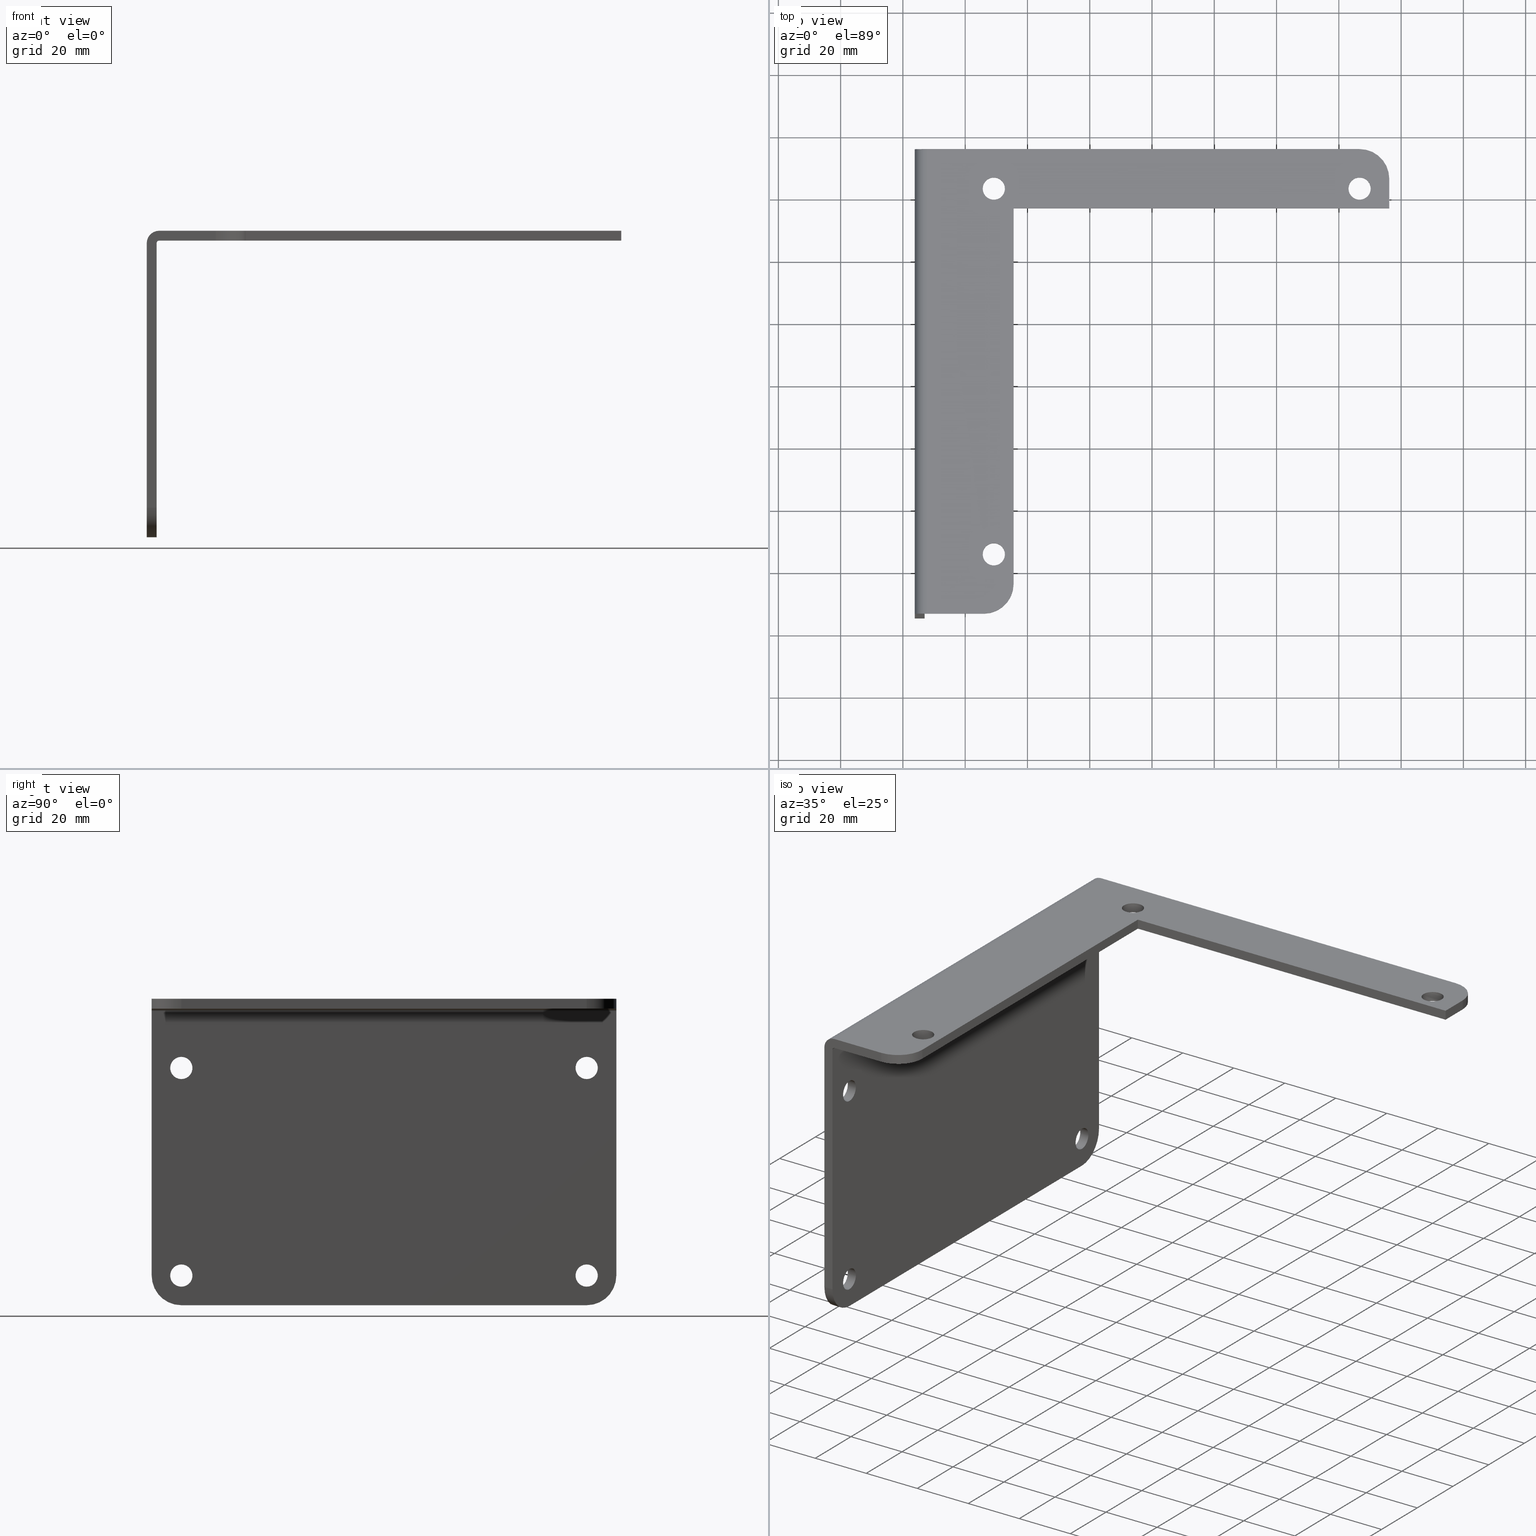
[diagram: canonical four-view strip — front | top / right | iso, engineering-drawing reading convention]
A machine part, canonical four-view strip (front | top / right | iso — engineering-drawing reading convention). The complete STEP part file that produces these views, byte-faithful:
ISO-10303-21;
HEADER;
/* Generated by software containing ST-Developer
 * from STEP Tools, Inc. (www.steptools.com) 
 */

FILE_DESCRIPTION(
/* description */ ('SSJW, WW FITTING, BRACKET HANGER, 4"'),
/* implementation_level */ '2;1');

FILE_NAME(
/* name */ 
'C:\\Wiegmann\\W-Projects\\W-India\\Catalog Projects\\SSJWBH\\SSJWBH D
XF, STP & PDF\\SSJWBH4.stp',
/* time_stamp */ '2017-08-22T20:16:18+06:00',
/* author */ ('rsundaram2'),
/* organization */ (''),
/* preprocessor_version */ 'ST-DEVELOPER v16.1',
/* originating_system */ 'Autodesk Inventor 2016',
/* authorisation */ '');

FILE_SCHEMA (('AUTOMOTIVE_DESIGN { 1 0 10303 214 3 1 1 }'));
ENDSEC;

DATA;
#10=MECHANICAL_DESIGN_GEOMETRIC_PRESENTATION_REPRESENTATION('',(#479,#469,
#470,#471,#472,#476,#468,#467,#478,#475,#474,#473,#480,#477,#461,#465,#464,
#460,#458,#457,#456,#455,#454,#463,#453,#459,#462,#466),#838);
#11=SHAPE_REPRESENTATION_RELATIONSHIP('SRR','None',#850,#12);
#12=ADVANCED_BREP_SHAPE_REPRESENTATION('',(#13),#837);
#13=MANIFOLD_SOLID_BREP('Solid1',#508);
#14=FACE_BOUND('',#79,.T.);
#15=FACE_BOUND('',#80,.T.);
#16=FACE_BOUND('',#81,.T.);
#17=FACE_BOUND('',#85,.T.);
#18=FACE_BOUND('',#86,.T.);
#19=FACE_BOUND('',#87,.T.);
#20=FACE_BOUND('',#88,.T.);
#21=FACE_BOUND('',#92,.T.);
#22=FACE_BOUND('',#94,.T.);
#23=FACE_BOUND('',#96,.T.);
#24=FACE_BOUND('',#98,.T.);
#25=FACE_BOUND('',#104,.T.);
#26=FACE_BOUND('',#105,.T.);
#27=FACE_BOUND('',#106,.T.);
#28=FACE_BOUND('',#107,.T.);
#29=FACE_BOUND('',#111,.T.);
#30=FACE_BOUND('',#113,.T.);
#31=FACE_BOUND('',#115,.T.);
#32=FACE_BOUND('',#121,.T.);
#33=FACE_BOUND('',#122,.T.);
#34=FACE_BOUND('',#123,.T.);
#35=PLANE('',#513);
#36=PLANE('',#514);
#37=PLANE('',#522);
#38=PLANE('',#523);
#39=PLANE('',#531);
#40=PLANE('',#543);
#41=PLANE('',#545);
#42=PLANE('',#547);
#43=PLANE('',#548);
#44=PLANE('',#550);
#45=PLANE('',#559);
#46=PLANE('',#560);
#47=PLANE('',#561);
#48=PLANE('',#562);
#49=FACE_OUTER_BOUND('',#76,.T.);
#50=FACE_OUTER_BOUND('',#77,.T.);
#51=FACE_OUTER_BOUND('',#78,.T.);
#52=FACE_OUTER_BOUND('',#82,.T.);
#53=FACE_OUTER_BOUND('',#83,.T.);
#54=FACE_OUTER_BOUND('',#84,.T.);
#55=FACE_OUTER_BOUND('',#89,.T.);
#56=FACE_OUTER_BOUND('',#90,.T.);
#57=FACE_OUTER_BOUND('',#91,.T.);
#58=FACE_OUTER_BOUND('',#93,.T.);
#59=FACE_OUTER_BOUND('',#95,.T.);
#60=FACE_OUTER_BOUND('',#97,.T.);
#61=FACE_OUTER_BOUND('',#99,.T.);
#62=FACE_OUTER_BOUND('',#100,.T.);
#63=FACE_OUTER_BOUND('',#101,.T.);
#64=FACE_OUTER_BOUND('',#102,.T.);
#65=FACE_OUTER_BOUND('',#103,.T.);
#66=FACE_OUTER_BOUND('',#108,.T.);
#67=FACE_OUTER_BOUND('',#109,.T.);
#68=FACE_OUTER_BOUND('',#110,.T.);
#69=FACE_OUTER_BOUND('',#112,.T.);
#70=FACE_OUTER_BOUND('',#114,.T.);
#71=FACE_OUTER_BOUND('',#116,.T.);
#72=FACE_OUTER_BOUND('',#117,.T.);
#73=FACE_OUTER_BOUND('',#118,.T.);
#74=FACE_OUTER_BOUND('',#119,.T.);
#75=FACE_OUTER_BOUND('',#120,.T.);
#76=EDGE_LOOP('',(#320,#321,#322,#323));
#77=EDGE_LOOP('',(#324,#325,#326,#327));
#78=EDGE_LOOP('',(#328,#329,#330,#331,#332,#333,#334,#335));
#79=EDGE_LOOP('',(#336));
#80=EDGE_LOOP('',(#337));
#81=EDGE_LOOP('',(#338));
#82=EDGE_LOOP('',(#339,#340,#341,#342));
#83=EDGE_LOOP('',(#343,#344,#345,#346));
#84=EDGE_LOOP('',(#347,#348,#349,#350,#351,#352));
#85=EDGE_LOOP('',(#353));
#86=EDGE_LOOP('',(#354));
#87=EDGE_LOOP('',(#355));
#88=EDGE_LOOP('',(#356));
#89=EDGE_LOOP('',(#357,#358,#359,#360));
#90=EDGE_LOOP('',(#361,#362,#363,#364));
#91=EDGE_LOOP('',(#365));
#92=EDGE_LOOP('',(#366));
#93=EDGE_LOOP('',(#367));
#94=EDGE_LOOP('',(#368));
#95=EDGE_LOOP('',(#369));
#96=EDGE_LOOP('',(#370));
#97=EDGE_LOOP('',(#371));
#98=EDGE_LOOP('',(#372));
#99=EDGE_LOOP('',(#373,#374,#375,#376));
#100=EDGE_LOOP('',(#377,#378,#379,#380));
#101=EDGE_LOOP('',(#381,#382,#383,#384));
#102=EDGE_LOOP('',(#385,#386,#387,#388));
#103=EDGE_LOOP('',(#389,#390,#391,#392,#393,#394));
#104=EDGE_LOOP('',(#395));
#105=EDGE_LOOP('',(#396));
#106=EDGE_LOOP('',(#397));
#107=EDGE_LOOP('',(#398));
#108=EDGE_LOOP('',(#399,#400,#401,#402));
#109=EDGE_LOOP('',(#403,#404,#405,#406));
#110=EDGE_LOOP('',(#407));
#111=EDGE_LOOP('',(#408));
#112=EDGE_LOOP('',(#409));
#113=EDGE_LOOP('',(#410));
#114=EDGE_LOOP('',(#411));
#115=EDGE_LOOP('',(#412));
#116=EDGE_LOOP('',(#413,#414,#415,#416));
#117=EDGE_LOOP('',(#417,#418,#419,#420));
#118=EDGE_LOOP('',(#421,#422,#423,#424));
#119=EDGE_LOOP('',(#425,#426,#427,#428));
#120=EDGE_LOOP('',(#429,#430,#431,#432,#433,#434,#435,#436));
#121=EDGE_LOOP('',(#437));
#122=EDGE_LOOP('',(#438));
#123=EDGE_LOOP('',(#439));
#124=LINE('',#711,#158);
#125=LINE('',#714,#159);
#126=LINE('',#717,#160);
#127=LINE('',#719,#161);
#128=LINE('',#720,#162);
#129=LINE('',#723,#163);
#130=LINE('',#725,#164);
#131=LINE('',#727,#165);
#132=LINE('',#731,#166);
#133=LINE('',#732,#167);
#134=LINE('',#744,#168);
#135=LINE('',#747,#169);
#136=LINE('',#750,#170);
#137=LINE('',#752,#171);
#138=LINE('',#753,#172);
#139=LINE('',#756,#173);
#140=LINE('',#760,#174);
#141=LINE('',#761,#175);
#142=LINE('',#774,#176);
#143=LINE('',#775,#177);
#144=LINE('',#778,#178);
#145=LINE('',#779,#179);
#146=LINE('',#793,#180);
#147=LINE('',#800,#181);
#148=LINE('',#803,#182);
#149=LINE('',#806,#183);
#150=LINE('',#809,#184);
#151=LINE('',#810,#185);
#152=LINE('',#822,#186);
#153=LINE('',#826,#187);
#154=LINE('',#827,#188);
#155=LINE('',#830,#189);
#156=LINE('',#831,#190);
#157=LINE('',#833,#191);
#158=VECTOR('',#569,0.125);
#159=VECTOR('',#572,0.125);
#160=VECTOR('',#575,0.718750000000001);
#161=VECTOR('',#576,0.125);
#162=VECTOR('',#577,0.718750000000001);
#163=VECTOR('',#580,4.75);
#164=VECTOR('',#581,4.75);
#165=VECTOR('',#582,0.375000000000001);
#166=VECTOR('',#585,5.46875);
#167=VECTOR('',#586,5.875);
#168=VECTOR('',#597,0.125);
#169=VECTOR('',#600,0.125);
#170=VECTOR('',#603,3.34375);
#171=VECTOR('',#604,0.125);
#172=VECTOR('',#605,3.34375);
#173=VECTOR('',#608,5.125);
#174=VECTOR('',#611,3.34375);
#175=VECTOR('',#612,5.875);
#176=VECTOR('',#625,0.125);
#177=VECTOR('',#626,0.125);
#178=VECTOR('',#629,3.34375);
#179=VECTOR('',#630,0.125);
#180=VECTOR('',#649,5.875);
#181=VECTOR('',#660,0.125);
#182=VECTOR('',#665,5.125);
#183=VECTOR('',#670,5.875);
#184=VECTOR('',#673,0.125);
#185=VECTOR('',#674,5.46875);
#186=VECTOR('',#689,0.125);
#187=VECTOR('',#694,0.125);
#188=VECTOR('',#695,0.375000000000001);
#189=VECTOR('',#698,0.125);
#190=VECTOR('',#699,4.75);
#191=VECTOR('',#702,4.75);
#192=CIRCLE('',#511,0.375);
#193=CIRCLE('',#512,0.375);
#194=CIRCLE('',#515,0.375);
#195=CIRCLE('',#516,0.140625);
#196=CIRCLE('',#517,0.140625);
#197=CIRCLE('',#518,0.140625);
#198=CIRCLE('',#520,0.375);
#199=CIRCLE('',#521,0.375);
#200=CIRCLE('',#524,0.375);
#201=CIRCLE('',#525,0.140625);
#202=CIRCLE('',#526,0.140625);
#203=CIRCLE('',#527,0.140625);
#204=CIRCLE('',#528,0.140625);
#205=CIRCLE('',#530,0.375);
#206=CIRCLE('',#533,0.140625);
#207=CIRCLE('',#535,0.140625);
#208=CIRCLE('',#537,0.140625);
#209=CIRCLE('',#539,0.140625);
#210=CIRCLE('',#541,0.156250000000001);
#211=CIRCLE('',#542,0.15625);
#212=CIRCLE('',#544,0.031250000000001);
#213=CIRCLE('',#546,0.0312499999999995);
#214=CIRCLE('',#552,0.140625);
#215=CIRCLE('',#554,0.140625);
#216=CIRCLE('',#556,0.140625);
#217=CIRCLE('',#558,0.375);
#218=VERTEX_POINT('',#707);
#219=VERTEX_POINT('',#708);
#220=VERTEX_POINT('',#710);
#221=VERTEX_POINT('',#712);
#222=VERTEX_POINT('',#716);
#223=VERTEX_POINT('',#718);
#224=VERTEX_POINT('',#722);
#225=VERTEX_POINT('',#724);
#226=VERTEX_POINT('',#726);
#227=VERTEX_POINT('',#728);
#228=VERTEX_POINT('',#730);
#229=VERTEX_POINT('',#733);
#230=VERTEX_POINT('',#735);
#231=VERTEX_POINT('',#737);
#232=VERTEX_POINT('',#740);
#233=VERTEX_POINT('',#741);
#234=VERTEX_POINT('',#743);
#235=VERTEX_POINT('',#745);
#236=VERTEX_POINT('',#749);
#237=VERTEX_POINT('',#751);
#238=VERTEX_POINT('',#755);
#239=VERTEX_POINT('',#757);
#240=VERTEX_POINT('',#759);
#241=VERTEX_POINT('',#762);
#242=VERTEX_POINT('',#764);
#243=VERTEX_POINT('',#766);
#244=VERTEX_POINT('',#768);
#245=VERTEX_POINT('',#771);
#246=VERTEX_POINT('',#772);
#247=VERTEX_POINT('',#777);
#248=VERTEX_POINT('',#781);
#249=VERTEX_POINT('',#784);
#250=VERTEX_POINT('',#787);
#251=VERTEX_POINT('',#790);
#252=VERTEX_POINT('',#799);
#253=VERTEX_POINT('',#808);
#254=VERTEX_POINT('',#812);
#255=VERTEX_POINT('',#815);
#256=VERTEX_POINT('',#818);
#257=VERTEX_POINT('',#821);
#258=VERTEX_POINT('',#825);
#259=VERTEX_POINT('',#829);
#260=EDGE_CURVE('',#218,#219,#192,.T.);
#261=EDGE_CURVE('',#219,#220,#124,.T.);
#262=EDGE_CURVE('',#220,#221,#193,.T.);
#263=EDGE_CURVE('',#221,#218,#125,.T.);
#264=EDGE_CURVE('',#219,#222,#126,.T.);
#265=EDGE_CURVE('',#222,#223,#127,.T.);
#266=EDGE_CURVE('',#223,#220,#128,.T.);
#267=EDGE_CURVE('',#224,#218,#129,.T.);
#268=EDGE_CURVE('',#225,#224,#130,.T.);
#269=EDGE_CURVE('',#226,#225,#131,.T.);
#270=EDGE_CURVE('',#227,#226,#194,.T.);
#271=EDGE_CURVE('',#228,#227,#132,.T.);
#272=EDGE_CURVE('',#228,#222,#133,.T.);
#273=EDGE_CURVE('',#229,#229,#195,.T.);
#274=EDGE_CURVE('',#230,#230,#196,.T.);
#275=EDGE_CURVE('',#231,#231,#197,.T.);
#276=EDGE_CURVE('',#232,#233,#198,.T.);
#277=EDGE_CURVE('',#233,#234,#134,.T.);
#278=EDGE_CURVE('',#234,#235,#199,.T.);
#279=EDGE_CURVE('',#235,#232,#135,.T.);
#280=EDGE_CURVE('',#235,#236,#136,.T.);
#281=EDGE_CURVE('',#236,#237,#137,.T.);
#282=EDGE_CURVE('',#237,#232,#138,.T.);
#283=EDGE_CURVE('',#234,#238,#139,.T.);
#284=EDGE_CURVE('',#239,#238,#200,.T.);
#285=EDGE_CURVE('',#239,#240,#140,.T.);
#286=EDGE_CURVE('',#240,#236,#141,.T.);
#287=EDGE_CURVE('',#241,#241,#201,.T.);
#288=EDGE_CURVE('',#242,#242,#202,.T.);
#289=EDGE_CURVE('',#243,#243,#203,.T.);
#290=EDGE_CURVE('',#244,#244,#204,.T.);
#291=EDGE_CURVE('',#245,#246,#205,.T.);
#292=EDGE_CURVE('',#246,#239,#142,.T.);
#293=EDGE_CURVE('',#238,#245,#143,.T.);
#294=EDGE_CURVE('',#246,#247,#144,.T.);
#295=EDGE_CURVE('',#247,#240,#145,.T.);
#296=EDGE_CURVE('',#248,#248,#206,.T.);
#297=EDGE_CURVE('',#249,#249,#207,.T.);
#298=EDGE_CURVE('',#250,#250,#208,.T.);
#299=EDGE_CURVE('',#251,#251,#209,.T.);
#300=EDGE_CURVE('',#237,#247,#146,.T.);
#301=EDGE_CURVE('',#222,#237,#210,.T.);
#302=EDGE_CURVE('',#247,#228,#211,.T.);
#303=EDGE_CURVE('',#236,#223,#212,.T.);
#304=EDGE_CURVE('',#252,#228,#147,.T.);
#305=EDGE_CURVE('',#240,#252,#213,.T.);
#306=EDGE_CURVE('',#233,#245,#148,.T.);
#307=EDGE_CURVE('',#223,#252,#149,.T.);
#308=EDGE_CURVE('',#253,#227,#150,.T.);
#309=EDGE_CURVE('',#253,#252,#151,.T.);
#310=EDGE_CURVE('',#254,#254,#214,.T.);
#311=EDGE_CURVE('',#255,#255,#215,.T.);
#312=EDGE_CURVE('',#256,#256,#216,.T.);
#313=EDGE_CURVE('',#257,#226,#152,.T.);
#314=EDGE_CURVE('',#257,#253,#217,.T.);
#315=EDGE_CURVE('',#258,#225,#153,.T.);
#316=EDGE_CURVE('',#258,#257,#154,.T.);
#317=EDGE_CURVE('',#259,#224,#155,.T.);
#318=EDGE_CURVE('',#259,#258,#156,.T.);
#319=EDGE_CURVE('',#221,#259,#157,.T.);
#320=ORIENTED_EDGE('',*,*,#260,.T.);
#321=ORIENTED_EDGE('',*,*,#261,.T.);
#322=ORIENTED_EDGE('',*,*,#262,.T.);
#323=ORIENTED_EDGE('',*,*,#263,.T.);
#324=ORIENTED_EDGE('',*,*,#261,.F.);
#325=ORIENTED_EDGE('',*,*,#264,.T.);
#326=ORIENTED_EDGE('',*,*,#265,.T.);
#327=ORIENTED_EDGE('',*,*,#266,.T.);
#328=ORIENTED_EDGE('',*,*,#260,.F.);
#329=ORIENTED_EDGE('',*,*,#267,.F.);
#330=ORIENTED_EDGE('',*,*,#268,.F.);
#331=ORIENTED_EDGE('',*,*,#269,.F.);
#332=ORIENTED_EDGE('',*,*,#270,.F.);
#333=ORIENTED_EDGE('',*,*,#271,.F.);
#334=ORIENTED_EDGE('',*,*,#272,.T.);
#335=ORIENTED_EDGE('',*,*,#264,.F.);
#336=ORIENTED_EDGE('',*,*,#273,.T.);
#337=ORIENTED_EDGE('',*,*,#274,.T.);
#338=ORIENTED_EDGE('',*,*,#275,.T.);
#339=ORIENTED_EDGE('',*,*,#276,.T.);
#340=ORIENTED_EDGE('',*,*,#277,.T.);
#341=ORIENTED_EDGE('',*,*,#278,.T.);
#342=ORIENTED_EDGE('',*,*,#279,.T.);
#343=ORIENTED_EDGE('',*,*,#279,.F.);
#344=ORIENTED_EDGE('',*,*,#280,.T.);
#345=ORIENTED_EDGE('',*,*,#281,.T.);
#346=ORIENTED_EDGE('',*,*,#282,.T.);
#347=ORIENTED_EDGE('',*,*,#278,.F.);
#348=ORIENTED_EDGE('',*,*,#283,.T.);
#349=ORIENTED_EDGE('',*,*,#284,.F.);
#350=ORIENTED_EDGE('',*,*,#285,.T.);
#351=ORIENTED_EDGE('',*,*,#286,.T.);
#352=ORIENTED_EDGE('',*,*,#280,.F.);
#353=ORIENTED_EDGE('',*,*,#287,.T.);
#354=ORIENTED_EDGE('',*,*,#288,.T.);
#355=ORIENTED_EDGE('',*,*,#289,.T.);
#356=ORIENTED_EDGE('',*,*,#290,.T.);
#357=ORIENTED_EDGE('',*,*,#291,.T.);
#358=ORIENTED_EDGE('',*,*,#292,.T.);
#359=ORIENTED_EDGE('',*,*,#284,.T.);
#360=ORIENTED_EDGE('',*,*,#293,.T.);
#361=ORIENTED_EDGE('',*,*,#292,.F.);
#362=ORIENTED_EDGE('',*,*,#294,.T.);
#363=ORIENTED_EDGE('',*,*,#295,.T.);
#364=ORIENTED_EDGE('',*,*,#285,.F.);
#365=ORIENTED_EDGE('',*,*,#287,.F.);
#366=ORIENTED_EDGE('',*,*,#296,.F.);
#367=ORIENTED_EDGE('',*,*,#288,.F.);
#368=ORIENTED_EDGE('',*,*,#297,.F.);
#369=ORIENTED_EDGE('',*,*,#289,.F.);
#370=ORIENTED_EDGE('',*,*,#298,.F.);
#371=ORIENTED_EDGE('',*,*,#290,.F.);
#372=ORIENTED_EDGE('',*,*,#299,.F.);
#373=ORIENTED_EDGE('',*,*,#300,.F.);
#374=ORIENTED_EDGE('',*,*,#301,.F.);
#375=ORIENTED_EDGE('',*,*,#272,.F.);
#376=ORIENTED_EDGE('',*,*,#302,.F.);
#377=ORIENTED_EDGE('',*,*,#281,.F.);
#378=ORIENTED_EDGE('',*,*,#303,.T.);
#379=ORIENTED_EDGE('',*,*,#265,.F.);
#380=ORIENTED_EDGE('',*,*,#301,.T.);
#381=ORIENTED_EDGE('',*,*,#295,.F.);
#382=ORIENTED_EDGE('',*,*,#302,.T.);
#383=ORIENTED_EDGE('',*,*,#304,.F.);
#384=ORIENTED_EDGE('',*,*,#305,.F.);
#385=ORIENTED_EDGE('',*,*,#277,.F.);
#386=ORIENTED_EDGE('',*,*,#306,.T.);
#387=ORIENTED_EDGE('',*,*,#293,.F.);
#388=ORIENTED_EDGE('',*,*,#283,.F.);
#389=ORIENTED_EDGE('',*,*,#276,.F.);
#390=ORIENTED_EDGE('',*,*,#282,.F.);
#391=ORIENTED_EDGE('',*,*,#300,.T.);
#392=ORIENTED_EDGE('',*,*,#294,.F.);
#393=ORIENTED_EDGE('',*,*,#291,.F.);
#394=ORIENTED_EDGE('',*,*,#306,.F.);
#395=ORIENTED_EDGE('',*,*,#296,.T.);
#396=ORIENTED_EDGE('',*,*,#297,.T.);
#397=ORIENTED_EDGE('',*,*,#298,.T.);
#398=ORIENTED_EDGE('',*,*,#299,.T.);
#399=ORIENTED_EDGE('',*,*,#286,.F.);
#400=ORIENTED_EDGE('',*,*,#305,.T.);
#401=ORIENTED_EDGE('',*,*,#307,.F.);
#402=ORIENTED_EDGE('',*,*,#303,.F.);
#403=ORIENTED_EDGE('',*,*,#304,.T.);
#404=ORIENTED_EDGE('',*,*,#271,.T.);
#405=ORIENTED_EDGE('',*,*,#308,.F.);
#406=ORIENTED_EDGE('',*,*,#309,.T.);
#407=ORIENTED_EDGE('',*,*,#273,.F.);
#408=ORIENTED_EDGE('',*,*,#310,.F.);
#409=ORIENTED_EDGE('',*,*,#274,.F.);
#410=ORIENTED_EDGE('',*,*,#311,.F.);
#411=ORIENTED_EDGE('',*,*,#275,.F.);
#412=ORIENTED_EDGE('',*,*,#312,.F.);
#413=ORIENTED_EDGE('',*,*,#270,.T.);
#414=ORIENTED_EDGE('',*,*,#313,.F.);
#415=ORIENTED_EDGE('',*,*,#314,.T.);
#416=ORIENTED_EDGE('',*,*,#308,.T.);
#417=ORIENTED_EDGE('',*,*,#269,.T.);
#418=ORIENTED_EDGE('',*,*,#315,.F.);
#419=ORIENTED_EDGE('',*,*,#316,.T.);
#420=ORIENTED_EDGE('',*,*,#313,.T.);
#421=ORIENTED_EDGE('',*,*,#268,.T.);
#422=ORIENTED_EDGE('',*,*,#317,.F.);
#423=ORIENTED_EDGE('',*,*,#318,.T.);
#424=ORIENTED_EDGE('',*,*,#315,.T.);
#425=ORIENTED_EDGE('',*,*,#263,.F.);
#426=ORIENTED_EDGE('',*,*,#319,.T.);
#427=ORIENTED_EDGE('',*,*,#317,.T.);
#428=ORIENTED_EDGE('',*,*,#267,.T.);
#429=ORIENTED_EDGE('',*,*,#262,.F.);
#430=ORIENTED_EDGE('',*,*,#266,.F.);
#431=ORIENTED_EDGE('',*,*,#307,.T.);
#432=ORIENTED_EDGE('',*,*,#309,.F.);
#433=ORIENTED_EDGE('',*,*,#314,.F.);
#434=ORIENTED_EDGE('',*,*,#316,.F.);
#435=ORIENTED_EDGE('',*,*,#318,.F.);
#436=ORIENTED_EDGE('',*,*,#319,.F.);
#437=ORIENTED_EDGE('',*,*,#310,.T.);
#438=ORIENTED_EDGE('',*,*,#311,.T.);
#439=ORIENTED_EDGE('',*,*,#312,.T.);
#440=CYLINDRICAL_SURFACE('',#510,0.375);
#441=CYLINDRICAL_SURFACE('',#519,0.375);
#442=CYLINDRICAL_SURFACE('',#529,0.375);
#443=CYLINDRICAL_SURFACE('',#532,0.140625);
#444=CYLINDRICAL_SURFACE('',#534,0.140625);
#445=CYLINDRICAL_SURFACE('',#536,0.140625);
#446=CYLINDRICAL_SURFACE('',#538,0.140625);
#447=CYLINDRICAL_SURFACE('',#540,0.15625);
#448=CYLINDRICAL_SURFACE('',#549,0.0312500000000003);
#449=CYLINDRICAL_SURFACE('',#551,0.140625);
#450=CYLINDRICAL_SURFACE('',#553,0.140625);
#451=CYLINDRICAL_SURFACE('',#555,0.140625);
#452=CYLINDRICAL_SURFACE('',#557,0.375);
#453=STYLED_ITEM('',(#859),#481);
#454=STYLED_ITEM('',(#859),#482);
#455=STYLED_ITEM('',(#859),#483);
#456=STYLED_ITEM('',(#859),#484);
#457=STYLED_ITEM('',(#859),#485);
#458=STYLED_ITEM('',(#859),#486);
#459=STYLED_ITEM('',(#859),#487);
#460=STYLED_ITEM('',(#859),#488);
#461=STYLED_ITEM('',(#859),#489);
#462=STYLED_ITEM('',(#859),#490);
#463=STYLED_ITEM('',(#859),#491);
#464=STYLED_ITEM('',(#859),#492);
#465=STYLED_ITEM('',(#859),#493);
#466=STYLED_ITEM('',(#859),#494);
#467=STYLED_ITEM('',(#859),#495);
#468=STYLED_ITEM('',(#859),#496);
#469=STYLED_ITEM('',(#859),#497);
#470=STYLED_ITEM('',(#859),#498);
#471=STYLED_ITEM('',(#859),#499);
#472=STYLED_ITEM('',(#859),#500);
#473=STYLED_ITEM('',(#859),#501);
#474=STYLED_ITEM('',(#859),#502);
#475=STYLED_ITEM('',(#859),#503);
#476=STYLED_ITEM('',(#859),#504);
#477=STYLED_ITEM('',(#859),#505);
#478=STYLED_ITEM('',(#859),#506);
#479=STYLED_ITEM('',(#859),#507);
#480=STYLED_ITEM('',(#859),#13);
#481=ADVANCED_FACE('',(#49),#440,.T.);
#482=ADVANCED_FACE('',(#50),#35,.T.);
#483=ADVANCED_FACE('',(#51,#14,#15,#16),#36,.T.);
#484=ADVANCED_FACE('',(#52),#441,.T.);
#485=ADVANCED_FACE('',(#53),#37,.T.);
#486=ADVANCED_FACE('',(#54,#17,#18,#19,#20),#38,.F.);
#487=ADVANCED_FACE('',(#55),#442,.T.);
#488=ADVANCED_FACE('',(#56),#39,.T.);
#489=ADVANCED_FACE('',(#57,#21),#443,.F.);
#490=ADVANCED_FACE('',(#58,#22),#444,.F.);
#491=ADVANCED_FACE('',(#59,#23),#445,.F.);
#492=ADVANCED_FACE('',(#60,#24),#446,.F.);
#493=ADVANCED_FACE('',(#61),#447,.T.);
#494=ADVANCED_FACE('',(#62),#40,.T.);
#495=ADVANCED_FACE('',(#63),#41,.T.);
#496=ADVANCED_FACE('',(#64),#42,.T.);
#497=ADVANCED_FACE('',(#65,#25,#26,#27,#28),#43,.T.);
#498=ADVANCED_FACE('',(#66),#448,.F.);
#499=ADVANCED_FACE('',(#67),#44,.T.);
#500=ADVANCED_FACE('',(#68,#29),#449,.F.);
#501=ADVANCED_FACE('',(#69,#30),#450,.F.);
#502=ADVANCED_FACE('',(#70,#31),#451,.F.);
#503=ADVANCED_FACE('',(#71),#452,.T.);
#504=ADVANCED_FACE('',(#72),#45,.T.);
#505=ADVANCED_FACE('',(#73),#46,.T.);
#506=ADVANCED_FACE('',(#74),#47,.T.);
#507=ADVANCED_FACE('',(#75,#32,#33,#34),#48,.F.);
#508=CLOSED_SHELL('',(#481,#482,#483,#484,#485,#486,#487,#488,#489,#490,
#491,#492,#493,#494,#495,#496,#497,#498,#499,#500,#501,#502,#503,#504,#505,
#506,#507));
#509=AXIS2_PLACEMENT_3D('placement',#705,#563,#564);
#510=AXIS2_PLACEMENT_3D('',#706,#565,#566);
#511=AXIS2_PLACEMENT_3D('',#709,#567,#568);
#512=AXIS2_PLACEMENT_3D('',#713,#570,#571);
#513=AXIS2_PLACEMENT_3D('',#715,#573,#574);
#514=AXIS2_PLACEMENT_3D('',#721,#578,#579);
#515=AXIS2_PLACEMENT_3D('',#729,#583,#584);
#516=AXIS2_PLACEMENT_3D('',#734,#587,#588);
#517=AXIS2_PLACEMENT_3D('',#736,#589,#590);
#518=AXIS2_PLACEMENT_3D('',#738,#591,#592);
#519=AXIS2_PLACEMENT_3D('',#739,#593,#594);
#520=AXIS2_PLACEMENT_3D('',#742,#595,#596);
#521=AXIS2_PLACEMENT_3D('',#746,#598,#599);
#522=AXIS2_PLACEMENT_3D('',#748,#601,#602);
#523=AXIS2_PLACEMENT_3D('',#754,#606,#607);
#524=AXIS2_PLACEMENT_3D('',#758,#609,#610);
#525=AXIS2_PLACEMENT_3D('',#763,#613,#614);
#526=AXIS2_PLACEMENT_3D('',#765,#615,#616);
#527=AXIS2_PLACEMENT_3D('',#767,#617,#618);
#528=AXIS2_PLACEMENT_3D('',#769,#619,#620);
#529=AXIS2_PLACEMENT_3D('',#770,#621,#622);
#530=AXIS2_PLACEMENT_3D('',#773,#623,#624);
#531=AXIS2_PLACEMENT_3D('',#776,#627,#628);
#532=AXIS2_PLACEMENT_3D('',#780,#631,#632);
#533=AXIS2_PLACEMENT_3D('',#782,#633,#634);
#534=AXIS2_PLACEMENT_3D('',#783,#635,#636);
#535=AXIS2_PLACEMENT_3D('',#785,#637,#638);
#536=AXIS2_PLACEMENT_3D('',#786,#639,#640);
#537=AXIS2_PLACEMENT_3D('',#788,#641,#642);
#538=AXIS2_PLACEMENT_3D('',#789,#643,#644);
#539=AXIS2_PLACEMENT_3D('',#791,#645,#646);
#540=AXIS2_PLACEMENT_3D('',#792,#647,#648);
#541=AXIS2_PLACEMENT_3D('',#794,#650,#651);
#542=AXIS2_PLACEMENT_3D('',#795,#652,#653);
#543=AXIS2_PLACEMENT_3D('',#796,#654,#655);
#544=AXIS2_PLACEMENT_3D('',#797,#656,#657);
#545=AXIS2_PLACEMENT_3D('',#798,#658,#659);
#546=AXIS2_PLACEMENT_3D('',#801,#661,#662);
#547=AXIS2_PLACEMENT_3D('',#802,#663,#664);
#548=AXIS2_PLACEMENT_3D('',#804,#666,#667);
#549=AXIS2_PLACEMENT_3D('',#805,#668,#669);
#550=AXIS2_PLACEMENT_3D('',#807,#671,#672);
#551=AXIS2_PLACEMENT_3D('',#811,#675,#676);
#552=AXIS2_PLACEMENT_3D('',#813,#677,#678);
#553=AXIS2_PLACEMENT_3D('',#814,#679,#680);
#554=AXIS2_PLACEMENT_3D('',#816,#681,#682);
#555=AXIS2_PLACEMENT_3D('',#817,#683,#684);
#556=AXIS2_PLACEMENT_3D('',#819,#685,#686);
#557=AXIS2_PLACEMENT_3D('',#820,#687,#688);
#558=AXIS2_PLACEMENT_3D('',#823,#690,#691);
#559=AXIS2_PLACEMENT_3D('',#824,#692,#693);
#560=AXIS2_PLACEMENT_3D('',#828,#696,#697);
#561=AXIS2_PLACEMENT_3D('',#832,#700,#701);
#562=AXIS2_PLACEMENT_3D('',#834,#703,#704);
#563=DIRECTION('axis',(0.,0.,1.));
#564=DIRECTION('refdir',(1.,0.,0.));
#565=DIRECTION('center_axis',(0.,0.,1.));
#566=DIRECTION('ref_axis',(0.707106781186548,-0.707106781186548,0.));
#567=DIRECTION('center_axis',(0.,0.,-1.));
#568=DIRECTION('ref_axis',(0.707106781186548,-0.707106781186548,0.));
#569=DIRECTION('',(0.,0.,-1.));
#570=DIRECTION('center_axis',(0.,0.,1.));
#571=DIRECTION('ref_axis',(0.707106781186548,-0.707106781186548,0.));
#572=DIRECTION('',(0.,0.,1.));
#573=DIRECTION('center_axis',(0.,-1.,0.));
#574=DIRECTION('ref_axis',(0.,0.,-1.));
#575=DIRECTION('',(-1.,0.,0.));
#576=DIRECTION('',(0.,0.,-1.));
#577=DIRECTION('',(1.,0.,0.));
#578=DIRECTION('center_axis',(0.,0.,1.));
#579=DIRECTION('ref_axis',(1.,0.,0.));
#580=DIRECTION('',(2.72918277610947E-16,-1.,0.));
#581=DIRECTION('',(-1.,-1.47232228711169E-16,0.));
#582=DIRECTION('',(1.27155106614191E-16,-1.,0.));
#583=DIRECTION('center_axis',(0.,0.,-1.));
#584=DIRECTION('ref_axis',(1.,0.,0.));
#585=DIRECTION('',(1.,3.10823593945801E-16,0.));
#586=DIRECTION('',(0.,-1.,0.));
#587=DIRECTION('center_axis',(0.,0.,-1.));
#588=DIRECTION('ref_axis',(-1.,0.,0.));
#589=DIRECTION('center_axis',(0.,0.,-1.));
#590=DIRECTION('ref_axis',(-1.,0.,0.));
#591=DIRECTION('center_axis',(0.,0.,-1.));
#592=DIRECTION('ref_axis',(-1.,0.,0.));
#593=DIRECTION('center_axis',(-1.,5.95194116066427E-17,-1.71512449944288E-15));
#594=DIRECTION('ref_axis',(1.3187128261911E-15,-0.707106781186547,-0.707106781186548));
#595=DIRECTION('center_axis',(1.,-2.04932946440049E-16,1.7179240638828E-15));
#596=DIRECTION('ref_axis',(1.3187128261911E-15,-0.707106781186547,-0.707106781186548));
#597=DIRECTION('',(1.,-5.95194116066427E-17,1.71512449944288E-15));
#598=DIRECTION('center_axis',(-1.,2.04914796784004E-16,-1.71210906378434E-15));
#599=DIRECTION('ref_axis',(1.3187128261911E-15,-0.707106781186547,-0.707106781186548));
#600=DIRECTION('',(-1.,5.95194116066427E-17,-1.71512449944288E-15));
#601=DIRECTION('center_axis',(-5.95194116066427E-17,-1.,0.));
#602=DIRECTION('ref_axis',(1.,0.,1.71841707530262E-15));
#603=DIRECTION('',(-1.72915050606973E-15,-5.95194116066426E-17,1.));
#604=DIRECTION('',(-1.,5.95194116066427E-17,-1.71512449944288E-15));
#605=DIRECTION('',(1.80915516651892E-15,-1.04204263129973E-31,-1.));
#606=DIRECTION('center_axis',(-1.,2.04914796784004E-16,-1.71210906378434E-15));
#607=DIRECTION('ref_axis',(-2.25597318603832E-15,5.95194116066428E-17,1.));
#608=DIRECTION('',(1.78558234819928E-16,1.,1.78558234819928E-16));
#609=DIRECTION('center_axis',(-1.,2.04914796784004E-16,-1.71210906378434E-15));
#610=DIRECTION('ref_axis',(1.3187128261911E-15,0.707106781186547,-0.707106781186547));
#611=DIRECTION('',(-1.72915050606973E-15,-5.95194116066426E-17,1.));
#612=DIRECTION('',(-2.04914796784004E-16,-1.,-2.49371187223627E-31));
#613=DIRECTION('center_axis',(-1.,2.04914796784004E-16,-1.71210906378434E-15));
#614=DIRECTION('ref_axis',(1.3987061727561E-15,2.3807764642657E-16,-1.));
#615=DIRECTION('center_axis',(-1.,2.04914796784004E-16,-1.71210906378434E-15));
#616=DIRECTION('ref_axis',(0.,2.3807764642657E-16,-1.));
#617=DIRECTION('center_axis',(-1.,2.04914796784004E-16,-1.71210906378434E-15));
#618=DIRECTION('ref_axis',(0.,2.3807764642657E-16,-1.));
#619=DIRECTION('center_axis',(-1.,2.04914796784004E-16,-1.71210906378434E-15));
#620=DIRECTION('ref_axis',(1.3987061727561E-15,2.3807764642657E-16,-1.));
#621=DIRECTION('center_axis',(-1.,5.95194116066427E-17,-1.71512449944288E-15));
#622=DIRECTION('ref_axis',(1.3187128261911E-15,0.707106781186547,-0.707106781186547));
#623=DIRECTION('center_axis',(1.,-2.04932946440049E-16,1.7179240638828E-15));
#624=DIRECTION('ref_axis',(1.3187128261911E-15,0.707106781186547,-0.707106781186547));
#625=DIRECTION('',(1.,-5.95194116066427E-17,1.71512449944288E-15));
#626=DIRECTION('',(-1.,5.95194116066427E-17,-1.71512449944288E-15));
#627=DIRECTION('center_axis',(5.95194116066426E-17,1.,5.95194116066427E-17));
#628=DIRECTION('ref_axis',(-1.,0.,-1.71841707530262E-15));
#629=DIRECTION('',(-1.72915050606973E-15,-5.95194116066426E-17,1.));
#630=DIRECTION('',(1.,-5.95194116066427E-17,1.71512449944288E-15));
#631=DIRECTION('center_axis',(1.,0.,1.3987061727561E-15));
#632=DIRECTION('ref_axis',(1.3987061727561E-15,2.3807764642657E-16,-1.));
#633=DIRECTION('center_axis',(1.,-2.04932946440049E-16,1.7179240638828E-15));
#634=DIRECTION('ref_axis',(1.3987061727561E-15,2.3807764642657E-16,-1.));
#635=DIRECTION('center_axis',(1.,0.,0.));
#636=DIRECTION('ref_axis',(0.,2.3807764642657E-16,-1.));
#637=DIRECTION('center_axis',(1.,-2.04932946440049E-16,1.7179240638828E-15));
#638=DIRECTION('ref_axis',(0.,2.3807764642657E-16,-1.));
#639=DIRECTION('center_axis',(1.,0.,0.));
#640=DIRECTION('ref_axis',(0.,2.3807764642657E-16,-1.));
#641=DIRECTION('center_axis',(1.,-2.04932946440049E-16,1.7179240638828E-15));
#642=DIRECTION('ref_axis',(0.,2.3807764642657E-16,-1.));
#643=DIRECTION('center_axis',(1.,0.,1.3987061727561E-15));
#644=DIRECTION('ref_axis',(1.3987061727561E-15,2.3807764642657E-16,-1.));
#645=DIRECTION('center_axis',(1.,-2.04932946440049E-16,1.7179240638828E-15));
#646=DIRECTION('ref_axis',(1.3987061727561E-15,2.3807764642657E-16,-1.));
#647=DIRECTION('center_axis',(-5.95194116066427E-17,-1.,0.));
#648=DIRECTION('ref_axis',(0.,0.,1.));
#649=DIRECTION('',(2.04932946440049E-16,1.,2.49402316143366E-31));
#650=DIRECTION('center_axis',(-5.95194116066427E-17,-1.,0.));
#651=DIRECTION('ref_axis',(-1.56655091348683E-14,0.,1.));
#652=DIRECTION('center_axis',(5.95194116066427E-17,1.,0.));
#653=DIRECTION('ref_axis',(-1.,0.,5.385018765111E-15));
#654=DIRECTION('center_axis',(-5.95194116066427E-17,-1.,0.));
#655=DIRECTION('ref_axis',(0.,0.,-1.));
#656=DIRECTION('center_axis',(5.95194116066427E-17,1.,0.));
#657=DIRECTION('ref_axis',(-1.,0.,-8.74191357972537E-15));
#658=DIRECTION('center_axis',(5.95194116066427E-17,1.,0.));
#659=DIRECTION('ref_axis',(0.,0.,1.));
#660=DIRECTION('',(0.,0.,1.));
#661=DIRECTION('center_axis',(5.95194116066427E-17,1.,0.));
#662=DIRECTION('ref_axis',(-1.,0.,5.41998641942998E-15));
#663=DIRECTION('center_axis',(1.71512449944288E-15,1.78558234819928E-16,
-1.));
#664=DIRECTION('ref_axis',(-1.,0.,-2.25597318603832E-15));
#665=DIRECTION('',(1.78558234819928E-16,1.,1.78558234819928E-16));
#666=DIRECTION('center_axis',(-1.,2.04932946440049E-16,-1.7179240638828E-15));
#667=DIRECTION('ref_axis',(-2.25597318603832E-15,5.95194116066428E-17,1.));
#668=DIRECTION('center_axis',(-5.95194116066427E-17,-1.,0.));
#669=DIRECTION('ref_axis',(0.,0.,1.));
#670=DIRECTION('',(0.,1.,0.));
#671=DIRECTION('center_axis',(-3.10823593945801E-16,1.,0.));
#672=DIRECTION('ref_axis',(0.,0.,1.));
#673=DIRECTION('',(0.,0.,1.));
#674=DIRECTION('',(-1.,-3.10823593945801E-16,0.));
#675=DIRECTION('center_axis',(0.,0.,1.));
#676=DIRECTION('ref_axis',(-1.,0.,0.));
#677=DIRECTION('center_axis',(0.,0.,1.));
#678=DIRECTION('ref_axis',(-1.,0.,0.));
#679=DIRECTION('center_axis',(0.,0.,1.));
#680=DIRECTION('ref_axis',(-1.,0.,0.));
#681=DIRECTION('center_axis',(0.,0.,1.));
#682=DIRECTION('ref_axis',(-1.,0.,0.));
#683=DIRECTION('center_axis',(0.,0.,1.));
#684=DIRECTION('ref_axis',(-1.,0.,0.));
#685=DIRECTION('center_axis',(0.,0.,1.));
#686=DIRECTION('ref_axis',(-1.,0.,0.));
#687=DIRECTION('center_axis',(0.,0.,1.));
#688=DIRECTION('ref_axis',(1.,0.,0.));
#689=DIRECTION('',(0.,0.,1.));
#690=DIRECTION('center_axis',(0.,0.,1.));
#691=DIRECTION('ref_axis',(1.,0.,0.));
#692=DIRECTION('center_axis',(1.,1.27155106614191E-16,0.));
#693=DIRECTION('ref_axis',(0.,0.,-1.));
#694=DIRECTION('',(0.,0.,1.));
#695=DIRECTION('',(-1.27155106614191E-16,1.,0.));
#696=DIRECTION('center_axis',(1.47232228711169E-16,-1.,0.));
#697=DIRECTION('ref_axis',(0.,0.,-1.));
#698=DIRECTION('',(0.,0.,1.));
#699=DIRECTION('',(1.,1.47232228711169E-16,0.));
#700=DIRECTION('center_axis',(1.,2.72918277610947E-16,0.));
#701=DIRECTION('ref_axis',(0.,0.,-1.));
#702=DIRECTION('',(-2.72918277610947E-16,1.,0.));
#703=DIRECTION('center_axis',(0.,0.,1.));
#704=DIRECTION('ref_axis',(1.,0.,0.));
#705=CARTESIAN_POINT('',(0.,0.,0.));
#706=CARTESIAN_POINT('Origin',(-2.125,-2.5625,0.));
#707=CARTESIAN_POINT('',(-1.75,-2.5625,0.125));
#708=CARTESIAN_POINT('',(-2.125,-2.9375,0.125));
#709=CARTESIAN_POINT('Origin',(-2.125,-2.5625,0.125));
#710=CARTESIAN_POINT('',(-2.125,-2.9375,0.));
#711=CARTESIAN_POINT('',(-2.125,-2.9375,0.));
#712=CARTESIAN_POINT('',(-1.75,-2.5625,0.));
#713=CARTESIAN_POINT('Origin',(-2.125,-2.5625,0.));
#714=CARTESIAN_POINT('',(-1.75,-2.5625,0.));
#715=CARTESIAN_POINT('Origin',(-1.75,-2.9375,0.));
#716=CARTESIAN_POINT('',(-2.84375,-2.9375,0.125));
#717=CARTESIAN_POINT('',(-3.,-2.9375,0.125));
#718=CARTESIAN_POINT('',(-2.84375,-2.9375,0.));
#719=CARTESIAN_POINT('',(-2.84375,-2.9375,0.));
#720=CARTESIAN_POINT('',(-3.,-2.9375,0.));
#721=CARTESIAN_POINT('Origin',(-1.05301263832873,1.01140124458396,0.125));
#722=CARTESIAN_POINT('',(-1.75,2.1875,0.125));
#723=CARTESIAN_POINT('',(-1.75,-2.9375,0.125));
#724=CARTESIAN_POINT('',(3.,2.1875,0.125));
#725=CARTESIAN_POINT('',(-1.75,2.1875,0.125));
#726=CARTESIAN_POINT('',(3.,2.5625,0.125));
#727=CARTESIAN_POINT('',(3.,-2.9375,0.125));
#728=CARTESIAN_POINT('',(2.625,2.9375,0.125));
#729=CARTESIAN_POINT('Origin',(2.625,2.5625,0.125));
#730=CARTESIAN_POINT('',(-2.84375,2.9375,0.125));
#731=CARTESIAN_POINT('',(2.625,2.9375,0.125));
#732=CARTESIAN_POINT('',(-2.84375,1.97445062229198,0.125));
#733=CARTESIAN_POINT('',(2.765625,2.4375,0.125));
#734=CARTESIAN_POINT('Origin',(2.625,2.4375,0.125));
#735=CARTESIAN_POINT('',(-1.859375,-2.1875,0.125));
#736=CARTESIAN_POINT('Origin',(-2.,-2.1875,0.125));
#737=CARTESIAN_POINT('',(-1.859375,2.4375,0.125));
#738=CARTESIAN_POINT('Origin',(-2.,2.4375,0.125));
#739=CARTESIAN_POINT('Origin',(-2.87499999999999,-2.5625,-3.375));
#740=CARTESIAN_POINT('',(-2.99999999999999,-2.9375,-3.375));
#741=CARTESIAN_POINT('',(-2.99999999999999,-2.5625,-3.75));
#742=CARTESIAN_POINT('Origin',(-2.99999999999999,-2.5625,-3.375));
#743=CARTESIAN_POINT('',(-2.87499999999999,-2.5625,-3.75));
#744=CARTESIAN_POINT('',(-2.87499999999999,-2.5625,-3.75));
#745=CARTESIAN_POINT('',(-2.87499999999999,-2.9375,-3.375));
#746=CARTESIAN_POINT('Origin',(-2.87499999999999,-2.5625,-3.375));
#747=CARTESIAN_POINT('',(-2.87499999999999,-2.9375,-3.375));
#748=CARTESIAN_POINT('Origin',(-2.875,-2.9375,-0.0312500000000006));
#749=CARTESIAN_POINT('',(-2.875,-2.9375,-0.0312500000000006));
#750=CARTESIAN_POINT('',(-2.875,-2.9375,0.146642684009521));
#751=CARTESIAN_POINT('',(-3.,-2.9375,-0.031250000000001));
#752=CARTESIAN_POINT('',(-2.8876875,-2.9375,-0.0312500000000006));
#753=CARTESIAN_POINT('',(-3.,-2.9375,-0.031250000000001));
#754=CARTESIAN_POINT('Origin',(-2.875,6.33823302807758E-17,-1.84615182899762));
#755=CARTESIAN_POINT('',(-2.87499999999999,2.5625,-3.75));
#756=CARTESIAN_POINT('',(-2.87499999999999,-2.9375,-3.75));
#757=CARTESIAN_POINT('',(-2.87499999999999,2.9375,-3.375));
#758=CARTESIAN_POINT('Origin',(-2.87499999999999,2.5625,-3.375));
#759=CARTESIAN_POINT('',(-2.875,2.9375,-0.0312499999999999));
#760=CARTESIAN_POINT('',(-2.875,2.9375,0.146642684009522));
#761=CARTESIAN_POINT('',(-2.875,3.0776451997304E-17,-0.0312499999999999));
#762=CARTESIAN_POINT('',(-2.875,2.5625,-0.609374999999999));
#763=CARTESIAN_POINT('Origin',(-2.875,2.5625,-0.749999999999999));
#764=CARTESIAN_POINT('',(-2.87499999999999,2.5625,-3.234375));
#765=CARTESIAN_POINT('Origin',(-2.875,2.5625,-3.375));
#766=CARTESIAN_POINT('',(-2.875,-2.5625,-3.234375));
#767=CARTESIAN_POINT('Origin',(-2.875,-2.5625,-3.375));
#768=CARTESIAN_POINT('',(-2.875,-2.5625,-0.609375000000001));
#769=CARTESIAN_POINT('Origin',(-2.875,-2.5625,-0.750000000000001));
#770=CARTESIAN_POINT('Origin',(-2.87499999999999,2.5625,-3.375));
#771=CARTESIAN_POINT('',(-2.99999999999999,2.5625,-3.75));
#772=CARTESIAN_POINT('',(-2.99999999999999,2.9375,-3.375));
#773=CARTESIAN_POINT('Origin',(-2.99999999999999,2.5625,-3.375));
#774=CARTESIAN_POINT('',(-2.87499999999999,2.9375,-3.375));
#775=CARTESIAN_POINT('',(-2.87499999999999,2.5625,-3.75));
#776=CARTESIAN_POINT('Origin',(-2.875,2.9375,-0.0312499999999999));
#777=CARTESIAN_POINT('',(-3.,2.9375,-0.0312500000000003));
#778=CARTESIAN_POINT('',(-3.,2.9375,0.146642684009521));
#779=CARTESIAN_POINT('',(-2.8876875,2.9375,-0.0312499999999999));
#780=CARTESIAN_POINT('Origin',(-3.,2.5625,-0.749999999999999));
#781=CARTESIAN_POINT('',(-3.,2.5625,-0.609374999999999));
#782=CARTESIAN_POINT('Origin',(-3.,2.5625,-0.749999999999999));
#783=CARTESIAN_POINT('Origin',(-2.99999999999999,2.5625,-3.375));
#784=CARTESIAN_POINT('',(-2.99999999999999,2.5625,-3.234375));
#785=CARTESIAN_POINT('Origin',(-3.,2.5625,-3.375));
#786=CARTESIAN_POINT('Origin',(-3.,-2.5625,-3.375));
#787=CARTESIAN_POINT('',(-3.,-2.5625,-3.234375));
#788=CARTESIAN_POINT('Origin',(-3.,-2.5625,-3.375));
#789=CARTESIAN_POINT('Origin',(-3.,-2.5625,-0.750000000000001));
#790=CARTESIAN_POINT('',(-3.,-2.5625,-0.609375000000001));
#791=CARTESIAN_POINT('Origin',(-3.,-2.5625,-0.750000000000001));
#792=CARTESIAN_POINT('Origin',(-2.84375,0.,-0.0312500000000003));
#793=CARTESIAN_POINT('',(-3.,4.73044941014611E-17,-0.031250000000001));
#794=CARTESIAN_POINT('Origin',(-2.84375,-2.9375,-0.0312500000000003));
#795=CARTESIAN_POINT('Origin',(-2.84375,2.9375,-0.0312500000000003));
#796=CARTESIAN_POINT('Origin',(-2.875,-2.9375,-0.0312500000000005));
#797=CARTESIAN_POINT('Origin',(-2.84375,-2.9375,-0.0312500000000003));
#798=CARTESIAN_POINT('Origin',(-3.,2.9375,-0.0312499999999994));
#799=CARTESIAN_POINT('',(-2.84375,2.9375,0.));
#800=CARTESIAN_POINT('',(-2.84375,2.9375,0.));
#801=CARTESIAN_POINT('Origin',(-2.84375,2.9375,-0.0312500000000003));
#802=CARTESIAN_POINT('Origin',(-2.87499999999999,-2.9375,-3.75));
#803=CARTESIAN_POINT('',(-2.99999999999999,-2.9375,-3.75));
#804=CARTESIAN_POINT('Origin',(-3.,7.08222567316061E-17,-1.84615182899762));
#805=CARTESIAN_POINT('Origin',(-2.84375,0.,-0.0312500000000003));
#806=CARTESIAN_POINT('',(-2.84375,1.97445062229198,0.));
#807=CARTESIAN_POINT('Origin',(-3.,2.9375,0.));
#808=CARTESIAN_POINT('',(2.625,2.9375,0.));
#809=CARTESIAN_POINT('',(2.625,2.9375,0.));
#810=CARTESIAN_POINT('',(2.625,2.9375,0.));
#811=CARTESIAN_POINT('Origin',(2.625,2.4375,0.));
#812=CARTESIAN_POINT('',(2.765625,2.4375,0.));
#813=CARTESIAN_POINT('Origin',(2.625,2.4375,0.));
#814=CARTESIAN_POINT('Origin',(-2.,-2.1875,0.));
#815=CARTESIAN_POINT('',(-1.859375,-2.1875,0.));
#816=CARTESIAN_POINT('Origin',(-2.,-2.1875,0.));
#817=CARTESIAN_POINT('Origin',(-2.,2.4375,0.));
#818=CARTESIAN_POINT('',(-1.859375,2.4375,0.));
#819=CARTESIAN_POINT('Origin',(-2.,2.4375,0.));
#820=CARTESIAN_POINT('Origin',(2.625,2.5625,0.));
#821=CARTESIAN_POINT('',(3.,2.5625,0.));
#822=CARTESIAN_POINT('',(3.,2.5625,0.));
#823=CARTESIAN_POINT('Origin',(2.625,2.5625,0.));
#824=CARTESIAN_POINT('Origin',(3.,2.5625,0.));
#825=CARTESIAN_POINT('',(3.,2.1875,0.));
#826=CARTESIAN_POINT('',(3.,2.1875,0.));
#827=CARTESIAN_POINT('',(3.,-2.9375,0.));
#828=CARTESIAN_POINT('Origin',(3.,2.1875,0.));
#829=CARTESIAN_POINT('',(-1.75,2.1875,0.));
#830=CARTESIAN_POINT('',(-1.75,2.1875,0.));
#831=CARTESIAN_POINT('',(-1.75,2.1875,0.));
#832=CARTESIAN_POINT('Origin',(-1.75,2.1875,0.));
#833=CARTESIAN_POINT('',(-1.75,-2.9375,0.));
#834=CARTESIAN_POINT('Origin',(-1.05301263832873,1.01140124458396,0.));
#835=UNCERTAINTY_MEASURE_WITH_UNIT(LENGTH_MEASURE(0.000393700787401575),
#839,'DISTANCE_ACCURACY_VALUE',
'Maximum model space distance between geometric entities at asserted c
onnectivities');
#836=UNCERTAINTY_MEASURE_WITH_UNIT(LENGTH_MEASURE(1.E-6),#840,
'DISTANCE_ACCURACY_VALUE',
'Maximum model space distance between geometric entities at asserted c
onnectivities');
#837=(
GEOMETRIC_REPRESENTATION_CONTEXT(3)
GLOBAL_UNCERTAINTY_ASSIGNED_CONTEXT((#835))
GLOBAL_UNIT_ASSIGNED_CONTEXT((#839,#845,#842))
REPRESENTATION_CONTEXT('','3D')
);
#838=(
GEOMETRIC_REPRESENTATION_CONTEXT(3)
GLOBAL_UNCERTAINTY_ASSIGNED_CONTEXT((#836))
GLOBAL_UNIT_ASSIGNED_CONTEXT((#840,#845,#842))
REPRESENTATION_CONTEXT('','3D')
);
#839=(
CONVERSION_BASED_UNIT('__CONSTANT UNIT inch',#841)
LENGTH_UNIT()
NAMED_UNIT(#844)
);
#840=(
LENGTH_UNIT()
NAMED_UNIT(*)
SI_UNIT(.MILLI.,.METRE.)
);
#841=LENGTH_MEASURE_WITH_UNIT(LENGTH_MEASURE(25.4),#840);
#842=(
NAMED_UNIT(*)
SI_UNIT($,.STERADIAN.)
SOLID_ANGLE_UNIT()
);
#843=DIMENSIONAL_EXPONENTS(0.,0.,0.,0.,0.,0.,0.);
#844=DIMENSIONAL_EXPONENTS(1.,0.,0.,0.,0.,0.,0.);
#845=(
CONVERSION_BASED_UNIT('degree',#847)
NAMED_UNIT(#843)
PLANE_ANGLE_UNIT()
);
#846=(
NAMED_UNIT(*)
PLANE_ANGLE_UNIT()
SI_UNIT($,.RADIAN.)
);
#847=PLANE_ANGLE_MEASURE_WITH_UNIT(PLANE_ANGLE_MEASURE(0.01745329252),#846);
#848=SHAPE_DEFINITION_REPRESENTATION(#849,#850);
#849=PRODUCT_DEFINITION_SHAPE('',$,#852);
#850=SHAPE_REPRESENTATION('',(#509),#837);
#851=PRODUCT_DEFINITION_CONTEXT('part definition',#856,'design');
#852=PRODUCT_DEFINITION('SSJWBH4','SSJWBH4',#853,#851);
#853=PRODUCT_DEFINITION_FORMATION('',$,#858);
#854=PRODUCT_RELATED_PRODUCT_CATEGORY('SSJWBH4','SSJWBH4',(#858));
#855=APPLICATION_PROTOCOL_DEFINITION('international standard',
'automotive_design',2009,#856);
#856=APPLICATION_CONTEXT(
'Core Data for Automotive Mechanical Design Process');
#857=PRODUCT_CONTEXT('part definition',#856,'mechanical');
#858=PRODUCT('SSJWBH4','SSJWBH4',$,(#857));
#859=PRESENTATION_STYLE_ASSIGNMENT((#860));
#860=SURFACE_STYLE_USAGE(.BOTH.,#861);
#861=SURFACE_SIDE_STYLE('',(#862));
#862=SURFACE_STYLE_FILL_AREA(#863);
#863=FILL_AREA_STYLE('',(#864));
#864=FILL_AREA_STYLE_COLOUR('',#865);
#865=COLOUR_RGB('',0.745098039215686,0.737254901960784,0.729411764705882);
ENDSEC;
END-ISO-10303-21;
